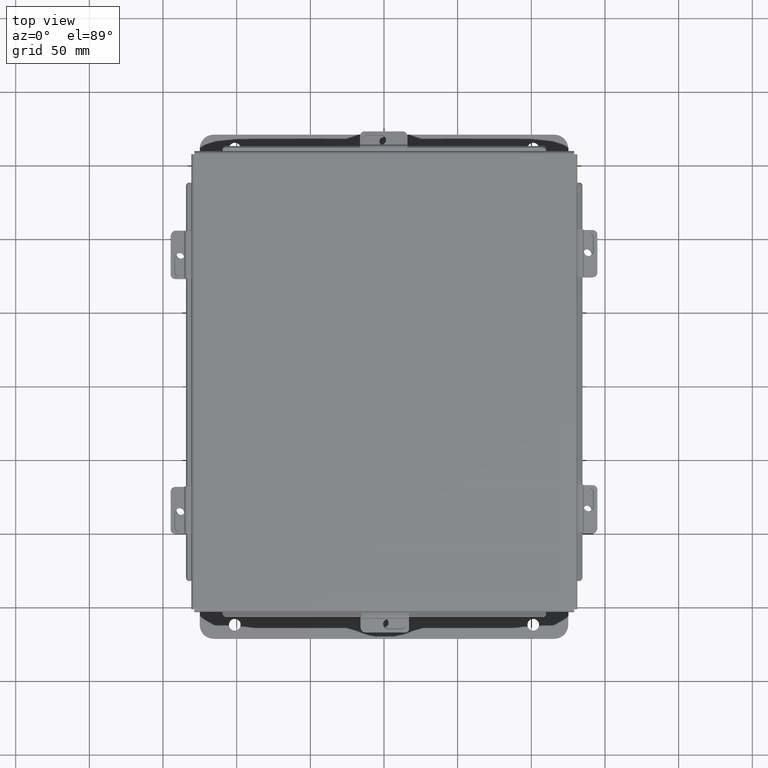
[diagram: clean part render]
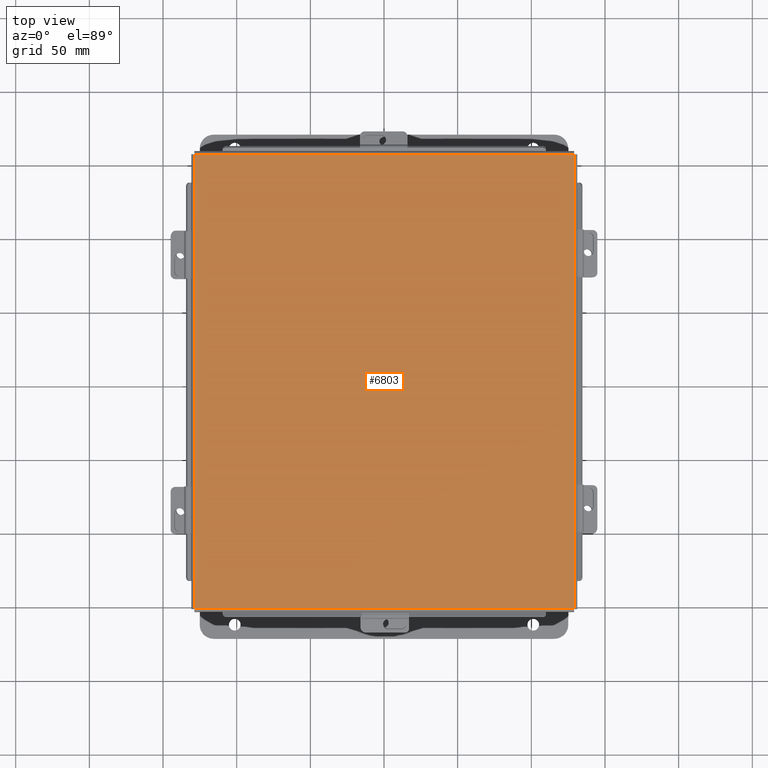
[diagram: same view with one face highlighted and labeled with its STEP entity id]
A machine part, top view. The second image highlights one B-rep face of the part: STEP entity #6803.
In plain terms, the highlighted planar face has unit normal (-0, -0, 1).
Its self-contained STEP definition (entity closure, byte-faithful):
#266 = DIRECTION ( 'NONE',  ( 1.000000000000000000, 0.0000000000000000000, 0.0000000000000000000 ) ) ;
#514 = ORIENTED_EDGE ( 'NONE', *, *, #6138, .T. ) ;
#535 = DIRECTION ( 'NONE',  ( -0.0000000000000000000, 1.000000000000000000, -0.0000000000000000000 ) ) ;
#658 = VERTEX_POINT ( 'NONE', #3390 ) ;
#983 = CARTESIAN_POINT ( 'NONE',  ( 5.074478932188137400, -6.068549999999999200, -0.07469999999999993300 ) ) ;
#1319 = ORIENTED_EDGE ( 'NONE', *, *, #7706, .T. ) ;
#1725 = ORIENTED_EDGE ( 'NONE', *, *, #9000, .T. ) ;
#1736 = FACE_OUTER_BOUND ( 'NONE', #5234, .T. ) ;
#2045 = DIRECTION ( 'NONE',  ( -1.000000000000000000, 0.0000000000000000000, -0.0000000000000000000 ) ) ;
#2439 = VERTEX_POINT ( 'NONE', #9081 ) ;
#3065 = AXIS2_PLACEMENT_3D ( 'NONE', #5028, #6540, #2045 ) ;
#3074 = VERTEX_POINT ( 'NONE', #9467 ) ;
#3390 = CARTESIAN_POINT ( 'NONE',  ( -5.068549999999998300, 6.068550000000001000, -0.07469999999999993300 ) ) ;
#3426 = VECTOR ( 'NONE', #5919, 39.37007874015748100 ) ;
#3668 = LINE ( 'NONE', #9617, #3426 ) ;
#4062 = CARTESIAN_POINT ( 'NONE',  ( 5.068550000000001000, -6.068549999999999200, -0.07469999999999993300 ) ) ;
#4587 = VECTOR ( 'NONE', #535, 39.37007874015748100 ) ;
#4740 = DIRECTION ( 'NONE',  ( -1.000000000000000000, 0.0000000000000000000, 0.0000000000000000000 ) ) ;
#5028 = CARTESIAN_POINT ( 'NONE',  ( 0.0000000000000000000, 0.0000000000000000000, -0.07470000000000000300 ) ) ;
#5058 = CARTESIAN_POINT ( 'NONE',  ( -5.068549999999998300, -6.074478932188134700, -0.07469999999999993300 ) ) ;
#5234 = EDGE_LOOP ( 'NONE', ( #514, #9154, #1319, #1725 ) ) ;
#5547 = CARTESIAN_POINT ( 'NONE',  ( -5.074478932188135600, 6.068550000000001000, -0.07469999999999993300 ) ) ;
#5919 = DIRECTION ( 'NONE',  ( -0.0000000000000000000, -1.000000000000000000, -0.0000000000000000000 ) ) ;
#5993 = VECTOR ( 'NONE', #266, 39.37007874015748100 ) ;
#6138 = EDGE_CURVE ( 'NONE', #658, #3074, #7981, .T. ) ;
#6254 = LINE ( 'NONE', #983, #6962 ) ;
#6507 = PLANE ( 'NONE',  #3065 ) ;
#6540 = DIRECTION ( 'NONE',  ( 0.0000000000000000000, 0.0000000000000000000, -1.000000000000000000 ) ) ;
#6803 = ADVANCED_FACE ( 'NONE', ( #1736 ), #6507, .T. ) ;
#6962 = VECTOR ( 'NONE', #4740, 39.37007874015748100 ) ;
#7706 = EDGE_CURVE ( 'NONE', #8706, #2439, #6254, .T. ) ;
#7981 = LINE ( 'NONE', #5547, #5993 ) ;
#8111 = LINE ( 'NONE', #5058, #4587 ) ;
#8706 = VERTEX_POINT ( 'NONE', #4062 ) ;
#9000 = EDGE_CURVE ( 'NONE', #2439, #658, #8111, .T. ) ;
#9081 = CARTESIAN_POINT ( 'NONE',  ( -5.068549999999998300, -6.068549999999999200, -0.07469999999999993300 ) ) ;
#9118 = EDGE_CURVE ( 'NONE', #3074, #8706, #3668, .T. ) ;
#9154 = ORIENTED_EDGE ( 'NONE', *, *, #9118, .T. ) ;
#9467 = CARTESIAN_POINT ( 'NONE',  ( 5.068550000000001000, 6.068550000000001000, -0.07469999999999993300 ) ) ;
#9617 = CARTESIAN_POINT ( 'NONE',  ( 5.068550000000001000, 6.074478932188137400, -0.07469999999999993300 ) ) ;